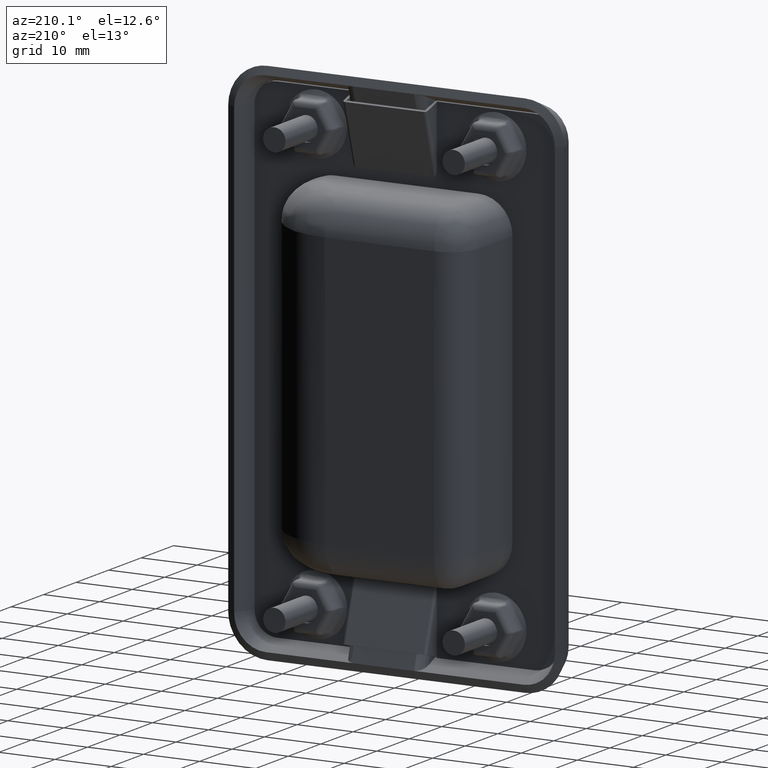
[diagram: clean part render]
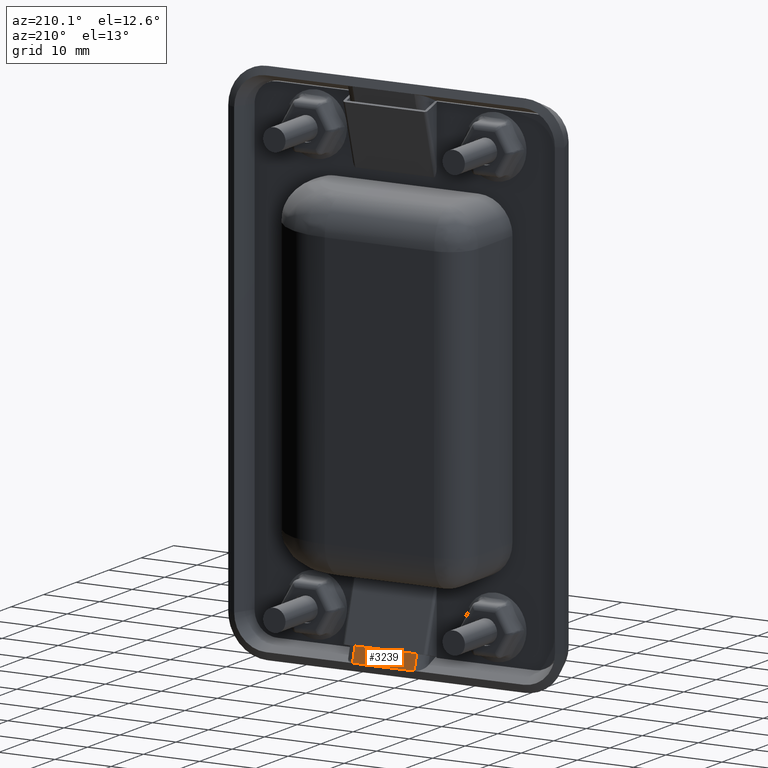
[diagram: same view with one face highlighted and labeled with its STEP entity id]
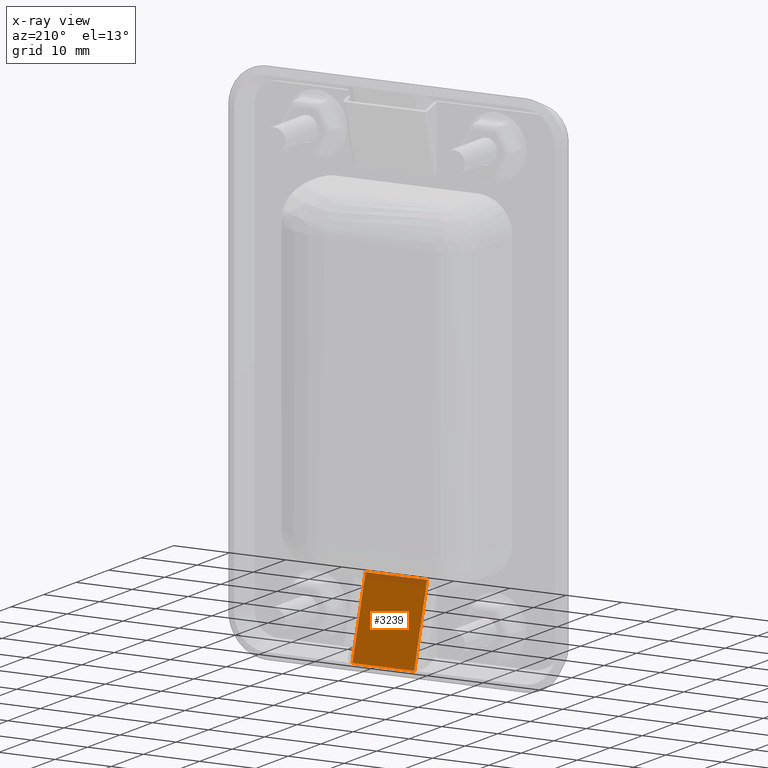
[diagram: x-ray of the same camera — body ghosted, the highlighted face saturated]
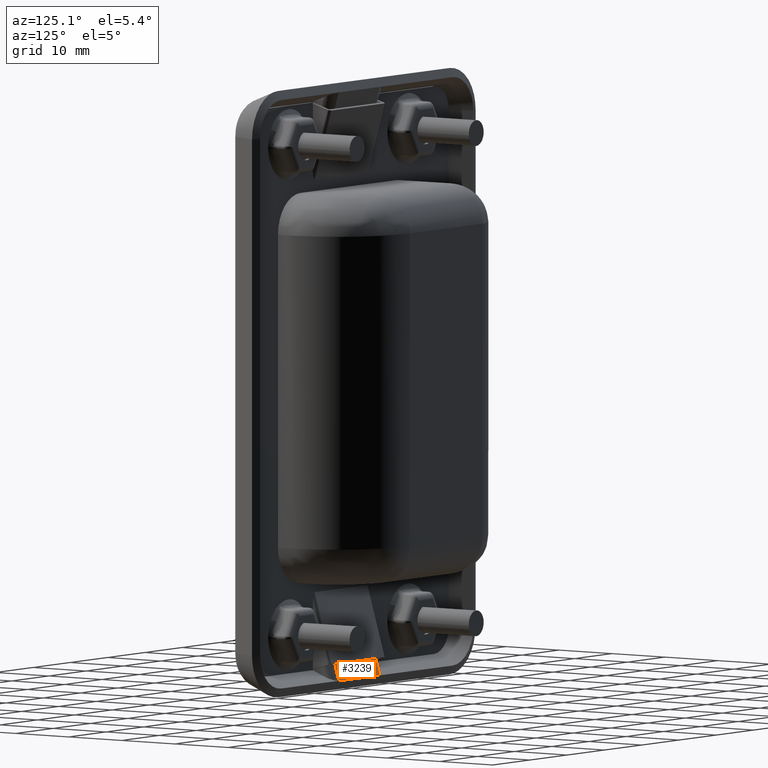
[diagram: same view with one face highlighted and labeled with its STEP entity id]
A machine part, auxiliary view. The second image highlights one B-rep face of the part: STEP entity #3239.
The next image is the same camera in x-ray: the body ghosted, the highlighted face saturated — about 7% of this face is hidden behind the body in this view.
A second angle (auxiliary view) of the same face is appended — the face is thin or edge-on in the first view.
In plain terms, the highlighted face is a freeform B-spline surface patch.
Its self-contained STEP definition (entity closure, byte-faithful):
#1304=CARTESIAN_POINT('',(37.500000000000000,-4.0,-32.0));
#1305=VERTEX_POINT('',#1304);
#1343=CARTESIAN_POINT('',(37.500000000000000,7.105427E-015,-45.608300000000000));
#1344=VERTEX_POINT('',#1343);
#1358=CARTESIAN_POINT('',(37.500000000000000,-4.0,-32.0));
#1359=CARTESIAN_POINT('',(37.500000000000000,7.105427E-015,-45.608300000000000));
#1360=QUASI_UNIFORM_CURVE('',1,(#1358,#1359),.UNSPECIFIED.,.F.,.U.);
#1361=EDGE_CURVE('',#1305,#1344,#1360,.T.);
#1380=CARTESIAN_POINT('',(26.500000000000000,-4.0,-32.0));
#1381=VERTEX_POINT('',#1380);
#1397=CARTESIAN_POINT('',(26.500000000000000,7.105427E-015,-45.608300000000000));
#1398=VERTEX_POINT('',#1397);
#1399=CARTESIAN_POINT('',(26.500000000000000,7.105427E-015,-45.608300000000000));
#1400=CARTESIAN_POINT('',(26.500000000000000,-4.0,-32.0));
#1401=QUASI_UNIFORM_CURVE('',1,(#1399,#1400),.UNSPECIFIED.,.F.,.U.);
#1402=EDGE_CURVE('',#1398,#1381,#1401,.T.);
#3215=CARTESIAN_POINT('',(37.500000000000000,7.105427E-015,-45.608300000000000));
#3216=CARTESIAN_POINT('',(26.500000000000000,7.105427E-015,-45.608300000000000));
#3217=QUASI_UNIFORM_CURVE('',1,(#3215,#3216),.UNSPECIFIED.,.F.,.U.);
#3218=EDGE_CURVE('',#1344,#1398,#3217,.T.);
#3224=CARTESIAN_POINT('',(25.950550021320129,0.199799804501516,-46.288033919899569));
#3225=CARTESIAN_POINT('',(25.950550021320129,-4.199800090603828,-31.320265106758981));
#3226=CARTESIAN_POINT('',(38.049450273722861,0.199799804501516,-46.288033919899569));
#3227=CARTESIAN_POINT('',(38.049450273722861,-4.199800090603828,-31.320265106758981));
#3228=B_SPLINE_SURFACE_WITH_KNOTS('',1,1,((#3224,#3226),(#3225,#3227)),.UNSPECIFIED.,.F.,.F.,.U.,(2,2),(2,2),(0.0,15.600980176919490),(0.0,12.098900252402730),.UNSPECIFIED.);
#3229=ORIENTED_EDGE('',*,*,#3218,.T.);
#3230=ORIENTED_EDGE('',*,*,#1402,.T.);
#3231=CARTESIAN_POINT('',(37.500000000000000,-4.0,-32.0));
#3232=CARTESIAN_POINT('',(26.500000000000000,-4.0,-32.0));
#3233=QUASI_UNIFORM_CURVE('',1,(#3231,#3232),.UNSPECIFIED.,.F.,.U.);
#3234=EDGE_CURVE('',#1305,#1381,#3233,.T.);
#3235=ORIENTED_EDGE('',*,*,#3234,.F.);
#3236=ORIENTED_EDGE('',*,*,#1361,.T.);
#3237=EDGE_LOOP('',(#3229,#3230,#3235,#3236));
#3238=FACE_OUTER_BOUND('',#3237,.T.);
#3239=ADVANCED_FACE('',(#3238),#3228,.T.);